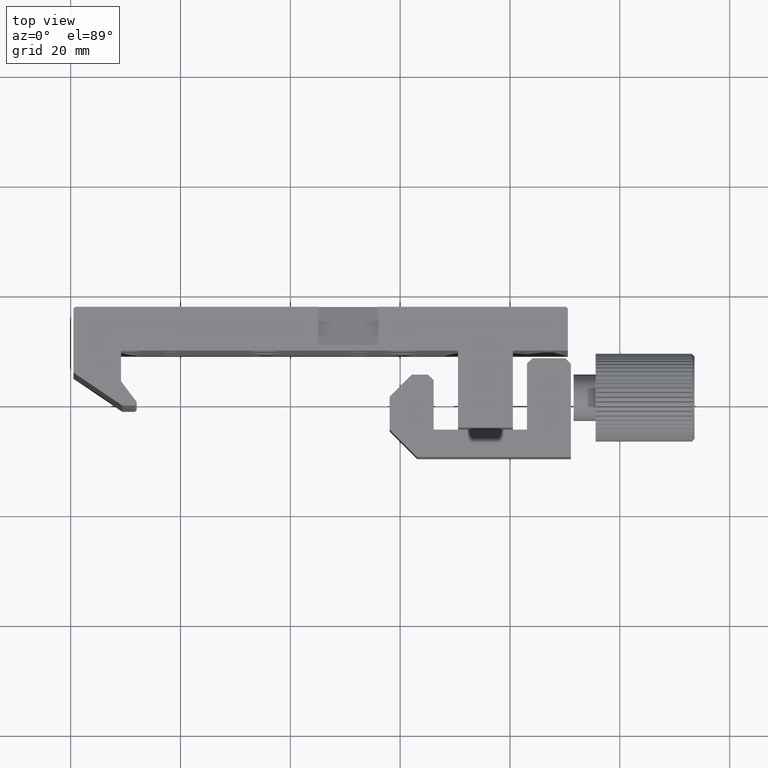
[diagram: clean part render]
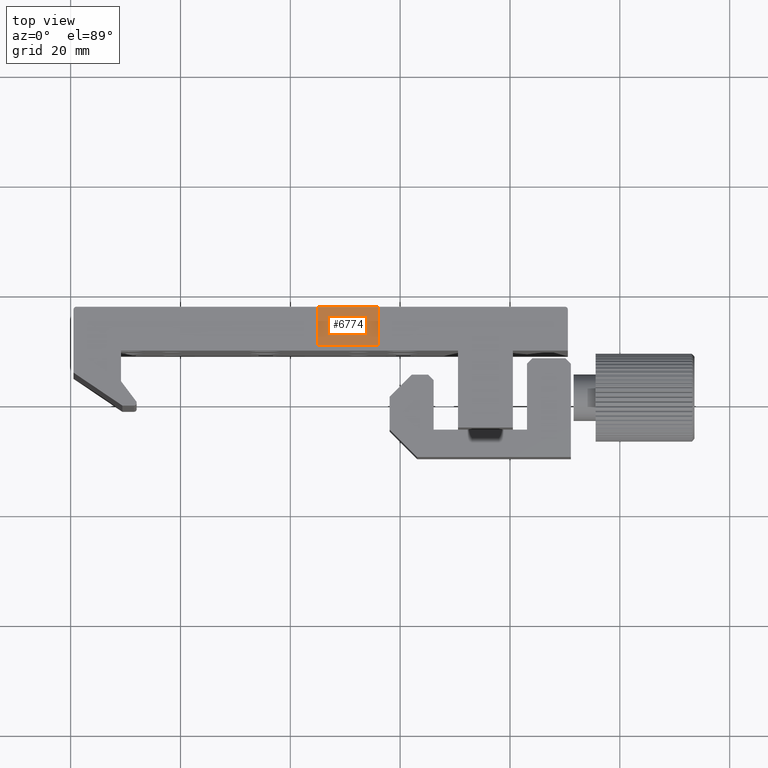
[diagram: same view with one face highlighted and labeled with its STEP entity id]
A machine part, top view. The second image highlights one B-rep face of the part: STEP entity #6774.
In plain terms, the highlighted planar face has unit normal (0, -0.2747, -0.9615).
Its self-contained STEP definition (entity closure, byte-faithful):
#724 = ORIENTED_EDGE ( 'NONE', *, *, #2517, .F. ) ;
#725 = ORIENTED_EDGE ( 'NONE', *, *, #2518, .T. ) ;
#726 = ORIENTED_EDGE ( 'NONE', *, *, #2515, .F. ) ;
#727 = ORIENTED_EDGE ( 'NONE', *, *, #2519, .T. ) ;
#1189 = CARTESIAN_POINT ( 'NONE',  ( -23.96968165733006700, 17.05953042695670500, 30.50000000000000000 ) ) ;
#1194 = CARTESIAN_POINT ( 'NONE',  ( -34.96968165733007100, 10.05953042695676900, 32.50000000000000000 ) ) ;
#1196 = DIRECTION ( 'NONE',  ( 0.0000000000000000000, -0.9615239476408223900, 0.2747211278973805100 ) ) ;
#1197 = CARTESIAN_POINT ( 'NONE',  ( -34.96968165733007100, 17.05953042695677600, 30.50000000000000000 ) ) ;
#1199 = CARTESIAN_POINT ( 'NONE',  ( -34.96968165733007100, 17.05953042695670500, 30.50000000000000000 ) ) ;
#1201 = DIRECTION ( 'NONE',  ( -1.191412974776019600E-016, 0.9615239476408223900, -0.2747211278973805100 ) ) ;
#1202 = DIRECTION ( 'NONE',  ( 1.000000000000000000, 0.0000000000000000000, 0.0000000000000000000 ) ) ;
#1204 = DIRECTION ( 'NONE',  ( -1.000000000000000000, -0.0000000000000000000, -0.0000000000000000000 ) ) ;
#2515 = EDGE_CURVE ( 'NONE', #5931, #5922, #7200, .T. ) ;
#2517 = EDGE_CURVE ( 'NONE', #5925, #5929, #7202, .T. ) ;
#2518 = EDGE_CURVE ( 'NONE', #5925, #5922, #7199, .T. ) ;
#2519 = EDGE_CURVE ( 'NONE', #5931, #5929, #7204, .T. ) ;
#2772 = CARTESIAN_POINT ( 'NONE',  ( -23.96968165733006700, 10.05953042695676900, 32.50000000000000000 ) ) ;
#2775 = CARTESIAN_POINT ( 'NONE',  ( -34.96968165733007100, 10.05953042695676900, 32.50000000000000000 ) ) ;
#4154 = FACE_OUTER_BOUND ( 'NONE', #5970, .T. ) ;
#4902 = CARTESIAN_POINT ( 'NONE',  ( -34.96968165733007100, 17.05953042695677600, 30.50000000000000000 ) ) ;
#4904 = CARTESIAN_POINT ( 'NONE',  ( -23.96968165733006700, 17.05953042695677600, 30.50000000000000000 ) ) ;
#5155 = CARTESIAN_POINT ( 'NONE',  ( -34.46968165733007100, 17.05953042695670500, 30.50000000000000000 ) ) ;
#5159 = PLANE ( 'NONE',  #5197 ) ;
#5161 = DIRECTION ( 'NONE',  ( 0.0000000000000000000, -0.2747211278973805700, -0.9615239476408225000 ) ) ;
#5162 = DIRECTION ( 'NONE',  ( 1.000000000000000000, 0.0000000000000000000, 0.0000000000000000000 ) ) ;
#5197 = AXIS2_PLACEMENT_3D ( 'NONE', #5155, #5161, #5162 ) ;
#5922 = VERTEX_POINT ( 'NONE', #2772 ) ;
#5925 = VERTEX_POINT ( 'NONE', #2775 ) ;
#5929 = VERTEX_POINT ( 'NONE', #4902 ) ;
#5931 = VERTEX_POINT ( 'NONE', #4904 ) ;
#5970 = EDGE_LOOP ( 'NONE', ( #724, #725, #726, #727 ) ) ;
#6774 = ADVANCED_FACE ( 'NONE', ( #4154 ), #5159, .F. ) ;
#7199 = LINE ( 'NONE', #1194, #7207 ) ;
#7200 = LINE ( 'NONE', #1189, #7201 ) ;
#7201 = VECTOR ( 'NONE', #1196, 1000.000000000000200 ) ;
#7202 = LINE ( 'NONE', #1199, #7205 ) ;
#7204 = LINE ( 'NONE', #1197, #7209 ) ;
#7205 = VECTOR ( 'NONE', #1201, 1000.000000000000200 ) ;
#7207 = VECTOR ( 'NONE', #1202, 1000.000000000000000 ) ;
#7209 = VECTOR ( 'NONE', #1204, 1000.000000000000000 ) ;